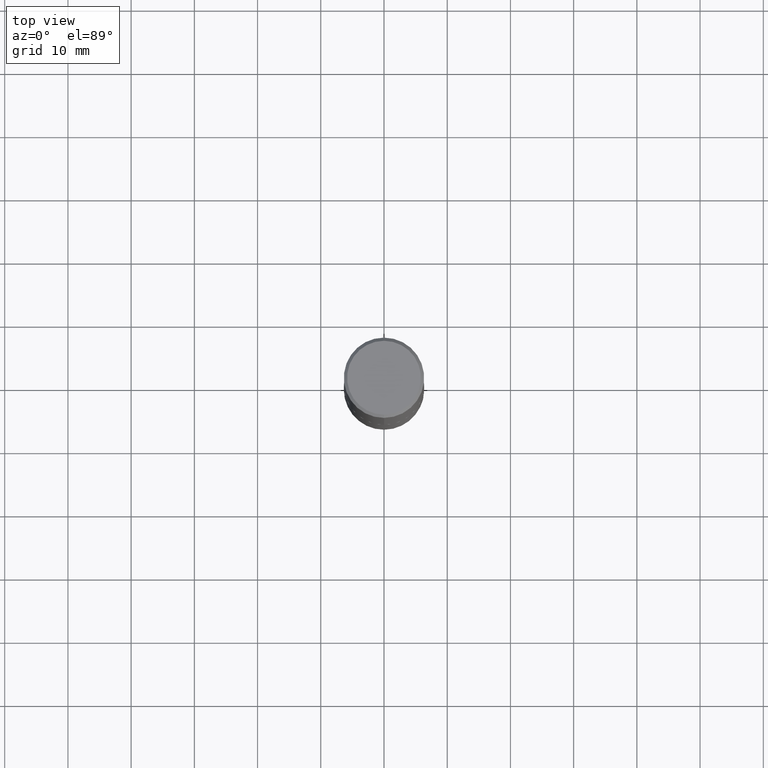
[diagram: clean part render]
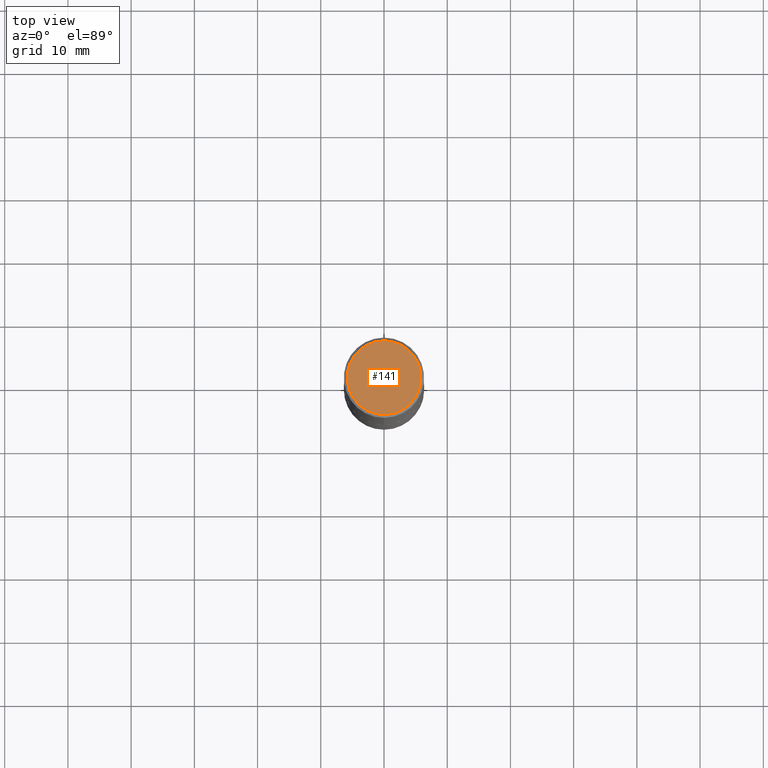
[diagram: same view with one face highlighted and labeled with its STEP entity id]
A machine part, top view. The second image highlights one B-rep face of the part: STEP entity #141.
In plain terms, the highlighted planar face has unit normal (0, -0, -1).
Its self-contained STEP definition (entity closure, byte-faithful):
#31 = VERTEX_POINT ( 'NONE', #181 ) ;
#51 = EDGE_LOOP ( 'NONE', ( #285, #317 ) ) ;
#59 = FACE_OUTER_BOUND ( 'NONE', #51, .T. ) ;
#96 = DIRECTION ( 'NONE',  ( -6.982962677686265922E-15, -1.000000000000000000, 3.490866408787436892E-15 ) ) ;
#98 = DIRECTION ( 'NONE',  ( 2.445898209547976618E-29, -3.490866408787436498E-15, -1.000000000000000000 ) ) ;
#131 = CARTESIAN_POINT ( 'NONE',  ( -1.144978846725488387E-45, 1.634151486436903570E-31, 4.681220347829154190E-17 ) ) ;
#140 = CIRCLE ( 'NONE', #189, 0.2299999999999998990 ) ;
#141 = ADVANCED_FACE ( 'NONE', ( #59 ), #153, .F. ) ;
#153 = PLANE ( 'NONE',  #257 ) ;
#172 = CARTESIAN_POINT ( 'NONE',  ( -1.144978846725488387E-45, 1.634151486436903570E-31, 4.681220347829154190E-17 ) ) ;
#178 = VERTEX_POINT ( 'NONE', #217 ) ;
#181 = CARTESIAN_POINT ( 'NONE',  ( -1.646519519465166770E-15, -0.2299999999999998990, 8.497114774994016356E-16 ) ) ;
#189 = AXIS2_PLACEMENT_3D ( 'NONE', #172, #302, #331 ) ;
#217 = CARTESIAN_POINT ( 'NONE',  ( 1.675911042644703774E-15, 0.2299999999999998990, -7.560870705428186997E-16 ) ) ;
#227 = DIRECTION ( 'NONE',  ( 6.982962677686265922E-15, 1.000000000000000000, -3.490866408787436498E-15 ) ) ;
#238 = EDGE_CURVE ( 'NONE', #178, #31, #271, .T. ) ;
#257 = AXIS2_PLACEMENT_3D ( 'NONE', #377, #98, #227 ) ;
#259 = DIRECTION ( 'NONE',  ( -2.445898209547976618E-29, 3.490866408787436892E-15, 1.000000000000000000 ) ) ;
#271 = CIRCLE ( 'NONE', #411, 0.2299999999999998990 ) ;
#285 = ORIENTED_EDGE ( 'NONE', *, *, #238, .T. ) ;
#302 = DIRECTION ( 'NONE',  ( -2.445898209547976618E-29, 3.490866408787436892E-15, 1.000000000000000000 ) ) ;
#317 = ORIENTED_EDGE ( 'NONE', *, *, #366, .T. ) ;
#331 = DIRECTION ( 'NONE',  ( -6.982962677686265922E-15, -1.000000000000000000, 3.490866408787436892E-15 ) ) ;
#366 = EDGE_CURVE ( 'NONE', #31, #178, #140, .T. ) ;
#377 = CARTESIAN_POINT ( 'NONE',  ( 1.606081415867840476E-15, 0.2299999999999998990, -7.794931722819644584E-16 ) ) ;
#411 = AXIS2_PLACEMENT_3D ( 'NONE', #131, #259, #96 ) ;